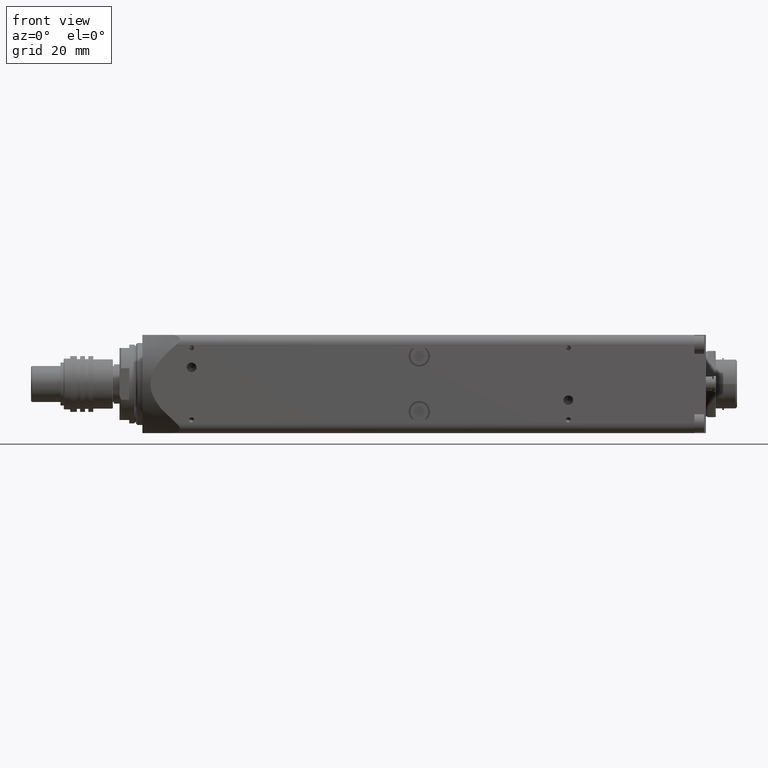
[diagram: clean part render]
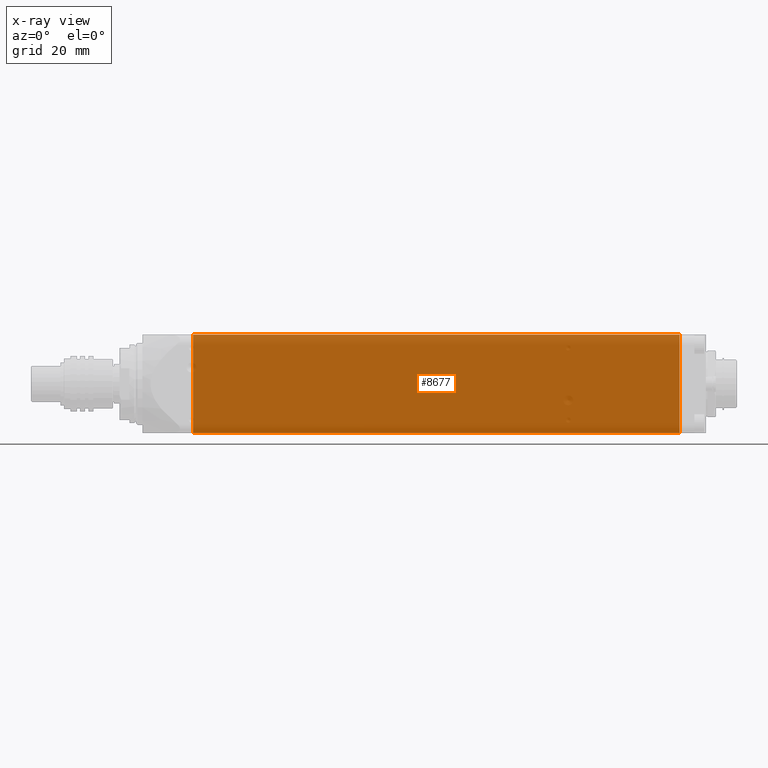
[diagram: x-ray — body ghosted, one internal face saturated and labeled with its STEP entity id]
A machine part, front view, then the same camera in x-ray: the body is ghosted and one INTERNAL B-rep face — a face not visible from any outside direction — is saturated and labeled: STEP entity #8677.
In plain terms, the highlighted planar face has unit normal (0, -1, 0).
Its self-contained STEP definition (entity closure, byte-faithful):
#90 = VERTEX_POINT ( 'NONE', #2499 ) ;
#151 = EDGE_LOOP ( 'NONE', ( #8995, #2705, #548, #4771 ) ) ;
#400 = LINE ( 'NONE', #6032, #8168 ) ;
#443 = CARTESIAN_POINT ( 'NONE',  ( 49.50000000000000000, 15.99999999999999600, 15.00000000000000000 ) ) ;
#548 = ORIENTED_EDGE ( 'NONE', *, *, #5406, .F. ) ;
#646 = CARTESIAN_POINT ( 'NONE',  ( 49.50000000000000000, 15.99999999999999600, -15.00000000000000000 ) ) ;
#1271 = LINE ( 'NONE', #11497, #11159 ) ;
#1529 = VECTOR ( 'NONE', #3247, 1000.000000000000000 ) ;
#2102 = PLANE ( 'NONE',  #3181 ) ;
#2499 = CARTESIAN_POINT ( 'NONE',  ( 49.50000000000000000, 15.99999999999999600, 15.00000000000000000 ) ) ;
#2640 = LINE ( 'NONE', #443, #1529 ) ;
#2705 = ORIENTED_EDGE ( 'NONE', *, *, #6298, .F. ) ;
#3158 = VERTEX_POINT ( 'NONE', #10957 ) ;
#3181 = AXIS2_PLACEMENT_3D ( 'NONE', #10431, #9272, #9516 ) ;
#3247 = DIRECTION ( 'NONE',  ( -0.0000000000000000000, -0.0000000000000000000, -1.000000000000000000 ) ) ;
#4771 = ORIENTED_EDGE ( 'NONE', *, *, #5188, .T. ) ;
#5188 = EDGE_CURVE ( 'NONE', #7617, #3158, #400, .T. ) ;
#5205 = CARTESIAN_POINT ( 'NONE',  ( 49.50000000000000000, 15.99999999999999600, 15.00000000000000000 ) ) ;
#5371 = EDGE_CURVE ( 'NONE', #3158, #7425, #1271, .T. ) ;
#5406 = EDGE_CURVE ( 'NONE', #7617, #90, #11288, .T. ) ;
#6032 = CARTESIAN_POINT ( 'NONE',  ( 198.0000000000000000, 15.99999999999999600, 15.00000000000000000 ) ) ;
#6298 = EDGE_CURVE ( 'NONE', #90, #7425, #2640, .T. ) ;
#7066 = FACE_OUTER_BOUND ( 'NONE', #151, .T. ) ;
#7165 = CARTESIAN_POINT ( 'NONE',  ( 198.0000000000000000, 15.99999999999999600, 15.00000000000000000 ) ) ;
#7425 = VERTEX_POINT ( 'NONE', #646 ) ;
#7617 = VERTEX_POINT ( 'NONE', #7165 ) ;
#8168 = VECTOR ( 'NONE', #8807, 1000.000000000000000 ) ;
#8677 = ADVANCED_FACE ( 'NONE', ( #7066 ), #2102, .F. ) ;
#8807 = DIRECTION ( 'NONE',  ( -0.0000000000000000000, -0.0000000000000000000, -1.000000000000000000 ) ) ;
#8995 = ORIENTED_EDGE ( 'NONE', *, *, #5371, .T. ) ;
#8997 = DIRECTION ( 'NONE',  ( -1.000000000000000000, -0.0000000000000000000, -0.0000000000000000000 ) ) ;
#9272 = DIRECTION ( 'NONE',  ( 0.0000000000000000000, -1.000000000000000000, 0.0000000000000000000 ) ) ;
#9516 = DIRECTION ( 'NONE',  ( 0.0000000000000000000, -0.0000000000000000000, -1.000000000000000000 ) ) ;
#10008 = VECTOR ( 'NONE', #8997, 1000.000000000000000 ) ;
#10431 = CARTESIAN_POINT ( 'NONE',  ( 49.50000000000000000, 15.99999999999999600, 15.00000000000000000 ) ) ;
#10957 = CARTESIAN_POINT ( 'NONE',  ( 198.0000000000000000, 15.99999999999999600, -15.00000000000000000 ) ) ;
#11159 = VECTOR ( 'NONE', #11537, 1000.000000000000000 ) ;
#11288 = LINE ( 'NONE', #5205, #10008 ) ;
#11497 = CARTESIAN_POINT ( 'NONE',  ( 49.50000000000000000, 15.99999999999999600, -15.00000000000000000 ) ) ;
#11537 = DIRECTION ( 'NONE',  ( -1.000000000000000000, -0.0000000000000000000, -0.0000000000000000000 ) ) ;